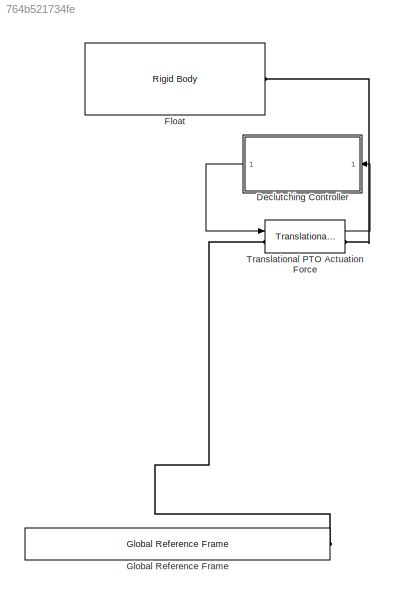
MODEL slx_764b521734fe
KIND model
CONFIG AbsTol = auto
CONFIG EnableMultiTasking = on
CONFIG FixedStep = 0.01
CONFIG MaxStep = 0.01
CONFIG MinStep = auto
CONFIG RelTol = 1e-3
CONFIG SampleTimeConstraint = Unconstrained
CONFIG SolverName = ode4
CONFIG StartTime = 0
CONFIG StopTime = 400
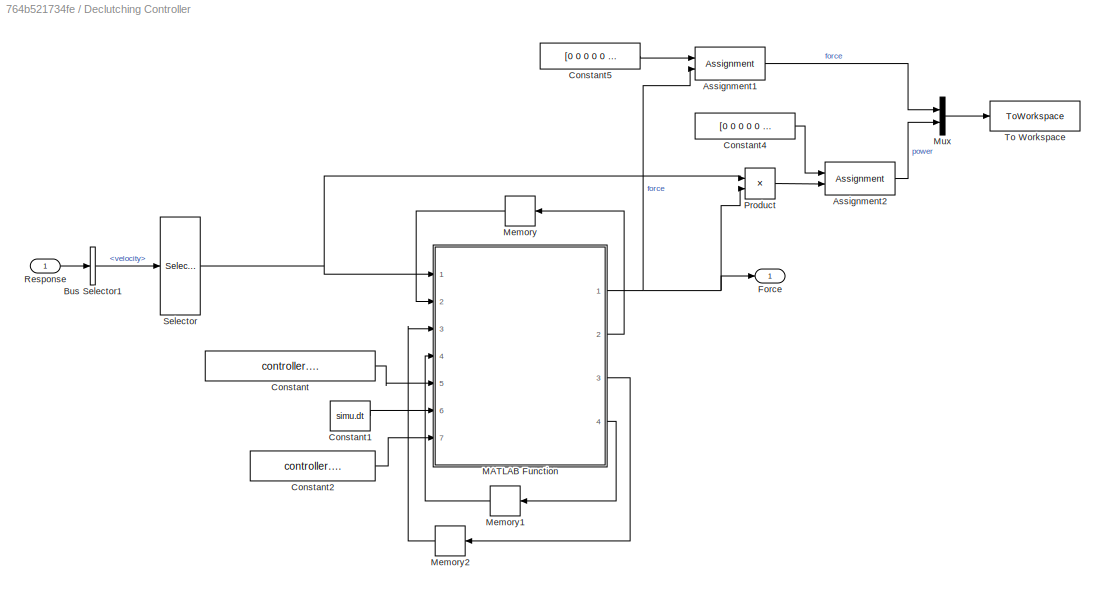
BLOCK [SubSystem] Declutching Controller
  Ports = [1, 1]
  RequestExecContextInheritance = off
BLOCK [Assignment] Declutching Controller/Assignment1
  IndexOptions = Index vector (dialog)
  Indices = 3
  OutputSizes = 1
  Ports = [2, 1]
BLOCK [Assignment] Declutching Controller/Assignment2
  IndexOptions = Index vector (dialog)
  Indices = 3
  OutputSizes = 1
  Ports = [2, 1]
BLOCK [BusSelector] Declutching Controller/Bus Selector1
  OutputSignals = velocity
  Ports = [1, 1]
BLOCK [Constant] Declutching Controller/Constant
  Value = controller.declutching.declutchTime
BLOCK [Constant] Declutching Controller/Constant1
  Value = simu.dt
BLOCK [Constant] Declutching Controller/Constant2
  Value = controller.declutching.Kp
BLOCK [Constant] Declutching Controller/Constant4
  Value = [0 0 0 0 0 0]
BLOCK [Constant] Declutching Controller/Constant5
  Value = [0 0 0 0 0 0]
BLOCK [Outport] Declutching Controller/Force
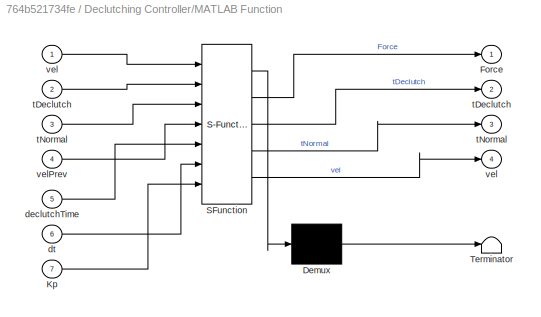
BLOCK [SubSystem] Declutching Controller/MATLAB Function
  ErrorFcn = Stateflow.Translate.translate
  PermitHierarchicalResolution = ExplicitOnly
  Ports = [7, 4]
  RequestExecContextInheritance = off
  SFBlockType = MATLAB Function
  TreatAsAtomicUnit = on
BLOCK [Demux] Declutching Controller/MATLAB Function/ Demux 
  Outputs = 1
  Ports = [1, 1]
BLOCK [S-Function] Declutching Controller/MATLAB Function/ SFunction 
  EnableBusSupport = on
  FunctionName = sf_sfun
  PortCounts = [7 5]
  Ports = [7, 5]
  SFcnIsStateOwnerBlock = off
  SFunctionDeploymentMode = off
  Tag = Stateflow S-Function 2
BLOCK [Terminator] Declutching Controller/MATLAB Function/ Terminator 
BLOCK [Outport] Declutching Controller/MATLAB Function/Force
BLOCK [Inport] Declutching Controller/MATLAB Function/Kp
  Port = 7
BLOCK [Inport] Declutching Controller/MATLAB Function/declutchTime
  Port = 5
BLOCK [Inport] Declutching Controller/MATLAB Function/dt
  Port = 6
BLOCK [Outport] Declutching Controller/MATLAB Function/tDeclutch
  Port = 2
BLOCK [Inport] Declutching Controller/MATLAB Function/tDeclutch 
  Port = 2
BLOCK [Outport] Declutching Controller/MATLAB Function/tNormal
  Port = 3
BLOCK [Inport] Declutching Controller/MATLAB Function/tNormal 
  Port = 3
BLOCK [Outport] Declutching Controller/MATLAB Function/vel
  Port = 4
BLOCK [Inport] Declutching Controller/MATLAB Function/vel 
BLOCK [Inport] Declutching Controller/MATLAB Function/velPrev
  Port = 4
BLOCK [Memory] Declutching Controller/Memory
BLOCK [Memory] Declutching Controller/Memory1
BLOCK [Memory] Declutching Controller/Memory2
BLOCK [Mux] Declutching Controller/Mux
  DisplayOption = bar
  Inputs = 2
  Ports = [2, 1]
BLOCK [Product] Declutching Controller/Product
  Ports = [2, 1]
BLOCK [Inport] Declutching Controller/Response
BLOCK [Selector] Declutching Controller/Selector
  IndexOptions = Index vector (dialog)
  Indices = 3
  InputPortWidth = 6
  OutputSizes = 1
  Ports = [1, 1]
BLOCK [ToWorkspace] Declutching Controller/To Workspace
  FixptAsFi = on
  MaxDataPoints = inf
  Ports = [1]
  SampleTime = simu.dtOut
  SaveFormat = Structure With Time
  VariableName = controller1_out
BLOCK [Reference] Float  REF=WECSim_Lib_Body_Elements/Rigid Body
  AttributesFormatString = %<body>
  Ports = [0, 0, 0, 0, 0, 0, 1]
  SourceBlock = WECSim_Lib_Body_Elements/Rigid Body
  SourceType = Rigid Body
BLOCK [Reference] Global Reference Frame  REF=WECSim_Lib_Frames/Global Reference Frame
  Ports = [0, 0, 0, 0, 0, 0, 1]
  SourceBlock = WECSim_Lib_Frames/Global Reference Frame
  SourceProductName = WEC-Sim
  SourceType = Frames
BLOCK [Reference] Translational PTO Actuation Force  REF=WECSim_Lib_PTOs/Translational PTO
Actuation Force
  AttributesFormatString = %<pto>
  Ports = [1, 1, 0, 0, 0, 1, 1]
  SourceBlock = WECSim_Lib_PTOs/Translational PTO\nActuation Force
  SourceType = PTO
LINE Declutching Controller/Assignment1:1 -> Declutching Controller/Mux:1
LINE Declutching Controller/Assignment2:1 -> Declutching Controller/Mux:2
LINE Declutching Controller/Bus Selector1:1 -> Declutching Controller/Selector:1
LINE Declutching Controller/Constant1:1 -> Declutching Controller/MATLAB Function:6
LINE Declutching Controller/Constant2:1 -> Declutching Controller/MATLAB Function:7
LINE Declutching Controller/Constant4:1 -> Declutching Controller/Assignment2:1
LINE Declutching Controller/Constant5:1 -> Declutching Controller/Assignment1:1
LINE Declutching Controller/Constant:1 -> Declutching Controller/MATLAB Function:5
NET Declutching Controller/MATLAB Function:1 -> Declutching Controller/Assignment1:2, Declutching Controller/Force:1, Declutching Controller/Product:2
LINE Declutching Controller/MATLAB Function:2 -> Declutching Controller/Memory:1
LINE Declutching Controller/MATLAB Function:3 -> Declutching Controller/Memory2:1
LINE Declutching Controller/MATLAB Function:4 -> Declutching Controller/Memory1:1
LINE Declutching Controller/Memory1:1 -> Declutching Controller/MATLAB Function:4
LINE Declutching Controller/Memory2:1 -> Declutching Controller/MATLAB Function:3
LINE Declutching Controller/Memory:1 -> Declutching Controller/MATLAB Function:2
LINE Declutching Controller/Mux:1 -> Declutching Controller/To Workspace:1
LINE Declutching Controller/Product:1 -> Declutching Controller/Assignment2:2
LINE Declutching Controller/Response:1 -> Declutching Controller/Bus Selector1:1
NET Declutching Controller/Selector:1 -> Declutching Controller/MATLAB Function:1, Declutching Controller/Product:1
LINE Declutching Controller:1 -> Translational PTO Actuation Force:1
LINE Translational PTO Actuation Force:1 -> Declutching Controller:1
PLINE Float:RConn1 -- Translational PTO Actuation Force:RConn1
PLINE Global Reference Frame:RConn1 -- Translational PTO Actuation Force:LConn1
note: NET lines group one-source signal fan-out (src -> all destinations, sorted); 1:1 wires keep LINE
CHART Declutching Controller/MATLAB Function states=1 transitions=1
  STATE_LABEL 'eML_blk_kernel()'
  STATE_LABEL 'SCRIPT:\nfunction [Force, tDeclutch, tNormal, vel] = declutching(vel, tDeclutch, tNormal, velPrev, declutchTime, dt, Kp)\n\n[Force, tDeclutch, tNormal, vel] = declutching(vel, tDeclutch, tNormal, velPrev, declutchTime, dt, Kp);\n\nend'
CHART  states=0 transitions=0
